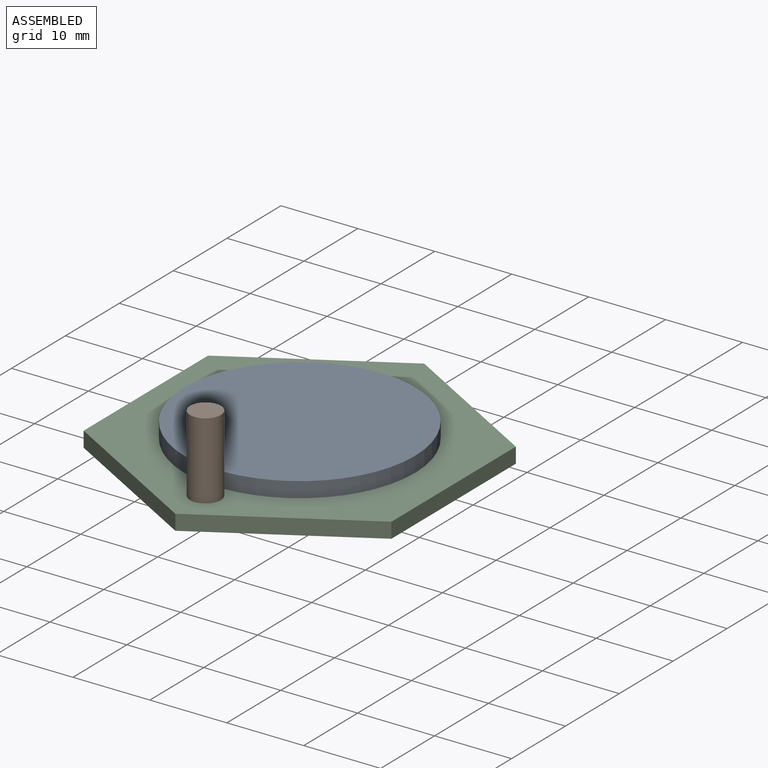
[diagram: assembled view]
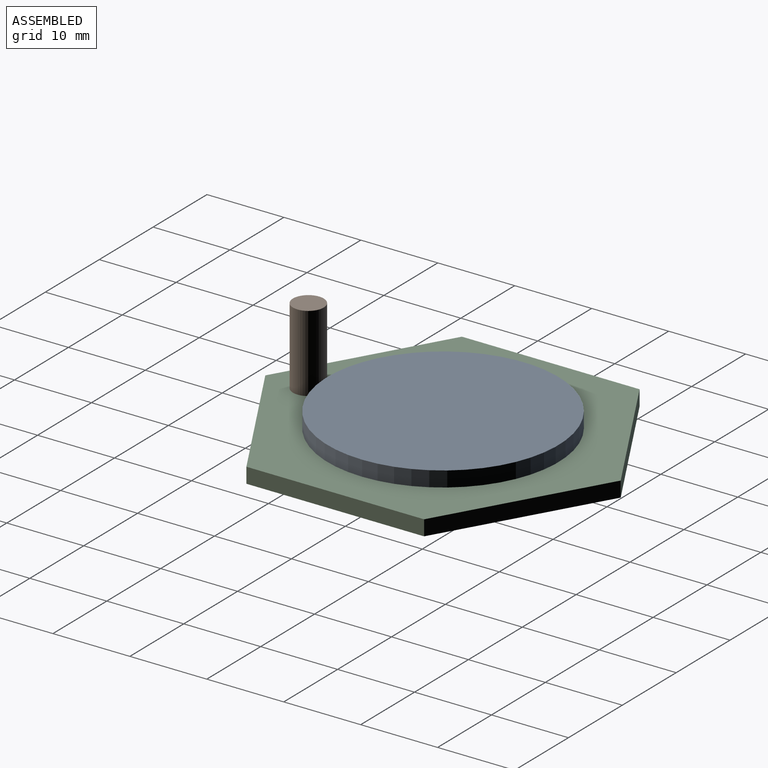
[diagram: assembled view, second angle]
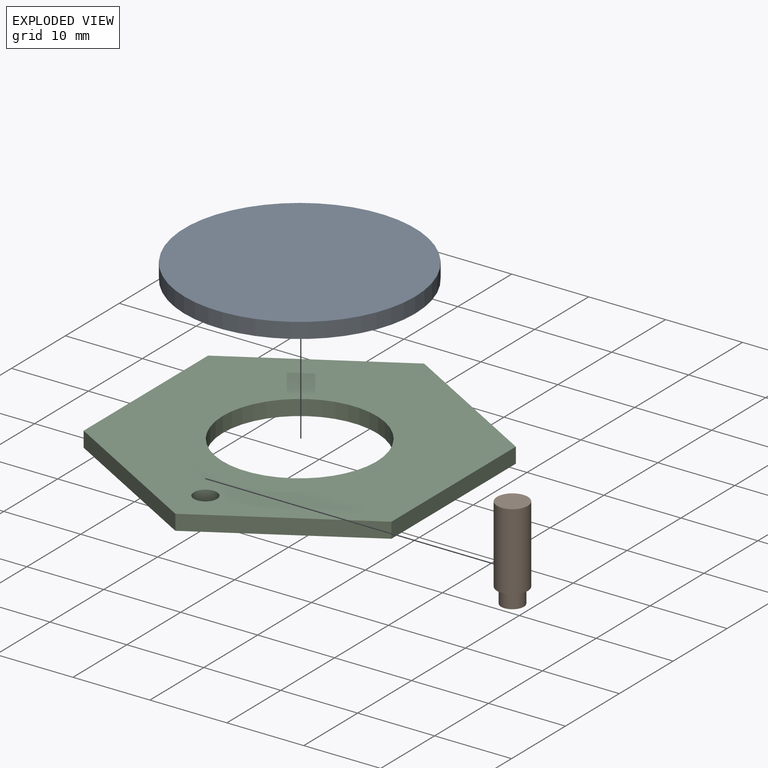
[diagram: exploded view]
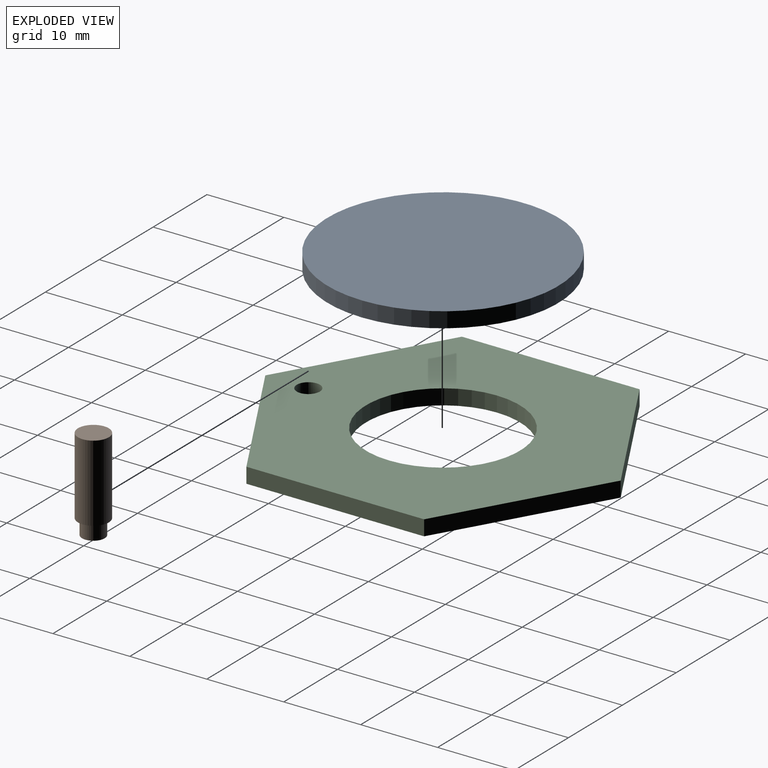
[diagram: exploded view, second angle]
ASSEMBLY  parts=3 mates=2
PART A: 5 faces, bbox 30x30x4 mm
  f0: cylinder r=10mm len=20mm, axis (0,0,-1), area 125.7mm2, adj f1,f4
  f1: plane 20x20mm, normal (0,0,-1), area 314.2mm2, adj f0
  f2: cylinder r=15mm len=30mm, axis (0,0,-1), area 188.5mm2, adj f3,f4
  f3: plane 30x30mm, normal (0,0,1), area 706.9mm2, adj f2
  f4: plane 30x30mm, normal (0,0,-1), area 392.7mm2, adj f0,f2
PART B: 5 faces, bbox 4x4x12 mm
  f0: cylinder r=1.47mm len=2.95mm, axis (0,0,-1), area 18.5mm2, adj f1,f4
  f1: plane 2.95x2.95mm, normal (0,0,-1), area 6.8mm2, adj f0
  f2: cylinder r=2mm len=10mm, axis (0,0,-1), area 125.7mm2, adj f3,f4
  f3: plane 4x4mm, normal (0,0,1), area 12.6mm2, adj f2
  f4: plane 4x4mm, normal (0,0,-1), area 5.7mm2, adj f0,f2
PART C: 10 faces, bbox 40x46.2x2 mm
  f0: plane 20x11.55mm, normal (0.5,0.87,0), area 46.2mm2, adj f1,f6,f8,f9
  f1: plane 20x11.55mm, normal (-0.5,0.87,0), area 46.2mm2, adj f0,f2,f8,f9
  f2: plane 23.09x2mm, normal (-1,0,0), area 46.2mm2, adj f1,f3,f8,f9
  f3: plane 20x11.55mm, normal (-0.5,-0.87,0), area 46.2mm2, adj f2,f4,f8,f9
  f4: plane 20x11.55mm, normal (0.5,-0.87,0), area 46.2mm2, adj f3,f6,f8,f9
  f5: cylinder r=10mm len=20mm, axis (0,0,-1), area 125.7mm2, adj f8,f9
  f6: plane 23.09x2mm, normal (1,0,0), area 46.2mm2, adj f0,f4,f8,f9
  f7: cylinder r=1.5mm len=3mm, axis (0,0,-1), area 18.8mm2, adj f8,f9
  f8: plane 46.19x40mm, normal (0,0,1), area 1064.4mm2, adj f0,f1,f2,f3,f4,f5,f6,f7
  f9: plane 46.19x40mm, normal (0,0,-1), area 1064.4mm2, adj f0,f1,f2,f3,f4,f5,f6,f7
PLACE A t=(-1.09,-2.07,-4.16)mm
PLACE B t=(-1.09,-9.57,-4.16)mm
PLACE C t=(-1.09,-2.07,-4.16)mm fixed
MATE fastened C.f5 <-> A.f0  axis (0,0,-1) through (-1.09,-2.07,-4.16)mm
MATE fastened C.f7 <-> B.f0  axis (0,0,-1) through (-1.09,-19.57,-4.16)mm
